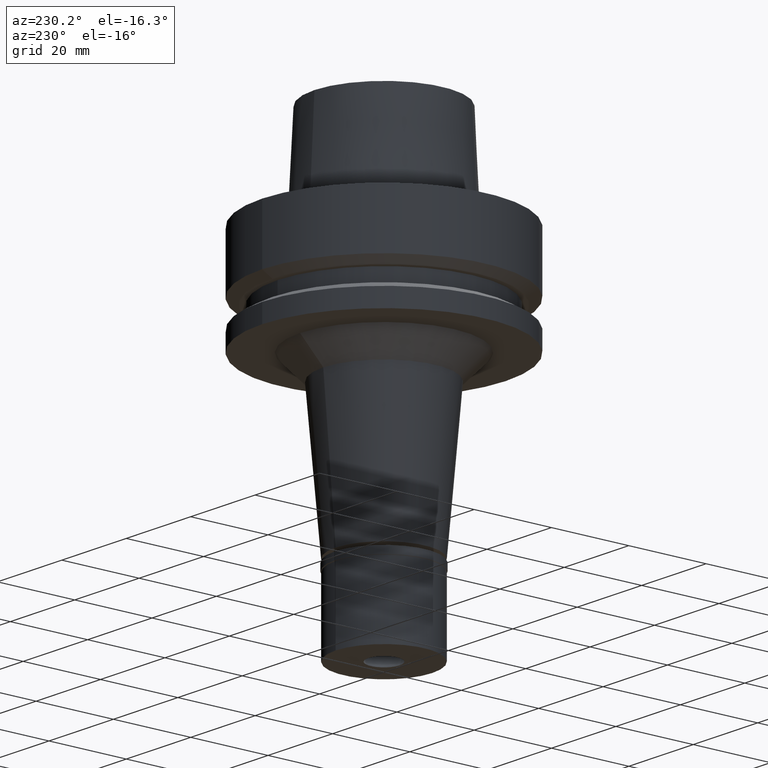
[diagram: clean part render]
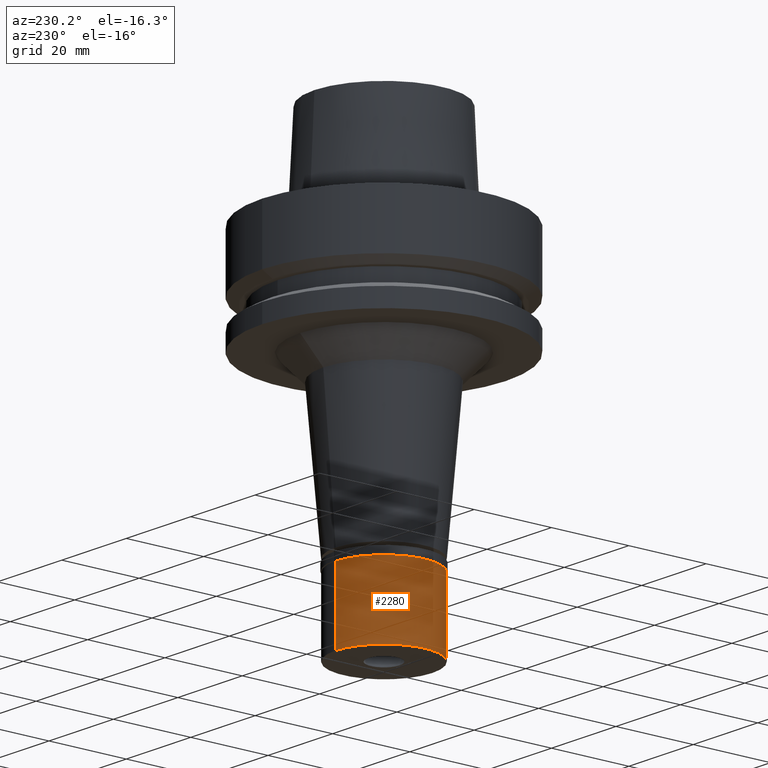
[diagram: same view with one face highlighted and labeled with its STEP entity id]
A machine part, auxiliary view. The second image highlights one B-rep face of the part: STEP entity #2280.
In plain terms, the highlighted cylindrical surface (partial cylindrical patch) has radius 12.5 mm, axis along (0, 0, -1).
Its self-contained STEP definition (entity closure, byte-faithful):
#70 = DIRECTION ( 'NONE',  ( 0.0000000000000000000, 0.0000000000000000000, -1.000000000000000000 ) ) ;
#170 = EDGE_CURVE ( 'NONE', #937, #426, #1186, .T. ) ;
#305 = CARTESIAN_POINT ( 'NONE',  ( 0.0000000000000000000, 12.50000000000000000, -20.50000000000000000 ) ) ;
#345 = DIRECTION ( 'NONE',  ( 0.0000000000000000000, -1.000000000000000000, 0.0000000000000000000 ) ) ;
#347 = ORIENTED_EDGE ( 'NONE', *, *, #2135, .T. ) ;
#426 = VERTEX_POINT ( 'NONE', #305 ) ;
#501 = AXIS2_PLACEMENT_3D ( 'NONE', #1461, #2328, #345 ) ;
#576 = ORIENTED_EDGE ( 'NONE', *, *, #1990, .T. ) ;
#686 = CARTESIAN_POINT ( 'NONE',  ( 0.0000000000000000000, -12.50000000000000000, -20.50000000000000000 ) ) ;
#690 = CARTESIAN_POINT ( 'NONE',  ( 0.0000000000000000000, 0.0000000000000000000, -2.000000000000000000 ) ) ;
#700 = LINE ( 'NONE', #1151, #1805 ) ;
#733 = CIRCLE ( 'NONE', #2680, 12.50000000000000000 ) ;
#892 = EDGE_LOOP ( 'NONE', ( #347, #1545, #576, #2306 ) ) ;
#937 = VERTEX_POINT ( 'NONE', #1465 ) ;
#1151 = CARTESIAN_POINT ( 'NONE',  ( 0.0000000000000000000, -12.50000000000000000, -2.000000000000000000 ) ) ;
#1186 = LINE ( 'NONE', #2049, #2553 ) ;
#1461 = CARTESIAN_POINT ( 'NONE',  ( 0.0000000000000000000, 0.0000000000000000000, 0.0000000000000000000 ) ) ;
#1465 = CARTESIAN_POINT ( 'NONE',  ( 0.0000000000000000000, 12.50000000000000000, -2.000000000000000000 ) ) ;
#1526 = CARTESIAN_POINT ( 'NONE',  ( 0.0000000000000000000, -12.50000000000000000, -2.000000000000000000 ) ) ;
#1545 = ORIENTED_EDGE ( 'NONE', *, *, #2687, .F. ) ;
#1594 = DIRECTION ( 'NONE',  ( 0.0000000000000000000, 0.0000000000000000000, 1.000000000000000000 ) ) ;
#1605 = DIRECTION ( 'NONE',  ( 0.0000000000000000000, 1.000000000000000000, 0.0000000000000000000 ) ) ;
#1672 = FACE_OUTER_BOUND ( 'NONE', #892, .T. ) ;
#1805 = VECTOR ( 'NONE', #2047, 1000.000000000000000 ) ;
#1824 = DIRECTION ( 'NONE',  ( 0.0000000000000000000, 0.0000000000000000000, -1.000000000000000000 ) ) ;
#1912 = VERTEX_POINT ( 'NONE', #1526 ) ;
#1990 = EDGE_CURVE ( 'NONE', #1912, #937, #2167, .T. ) ;
#2047 = DIRECTION ( 'NONE',  ( 0.0000000000000000000, 0.0000000000000000000, -1.000000000000000000 ) ) ;
#2049 = CARTESIAN_POINT ( 'NONE',  ( 0.0000000000000000000, 12.50000000000000000, -2.000000000000000000 ) ) ;
#2135 = EDGE_CURVE ( 'NONE', #426, #2621, #733, .T. ) ;
#2167 = CIRCLE ( 'NONE', #2547, 12.50000000000000000 ) ;
#2266 = DIRECTION ( 'NONE',  ( 0.0000000000000000000, -1.000000000000000000, 0.0000000000000000000 ) ) ;
#2280 = ADVANCED_FACE ( 'NONE', ( #1672 ), #2555, .T. ) ;
#2306 = ORIENTED_EDGE ( 'NONE', *, *, #170, .T. ) ;
#2328 = DIRECTION ( 'NONE',  ( 0.0000000000000000000, 0.0000000000000000000, -1.000000000000000000 ) ) ;
#2547 = AXIS2_PLACEMENT_3D ( 'NONE', #690, #1824, #2266 ) ;
#2553 = VECTOR ( 'NONE', #70, 1000.000000000000000 ) ;
#2555 = CYLINDRICAL_SURFACE ( 'NONE', #501, 12.50000000000000000 ) ;
#2621 = VERTEX_POINT ( 'NONE', #686 ) ;
#2680 = AXIS2_PLACEMENT_3D ( 'NONE', #2722, #1594, #1605 ) ;
#2687 = EDGE_CURVE ( 'NONE', #1912, #2621, #700, .T. ) ;
#2722 = CARTESIAN_POINT ( 'NONE',  ( 0.0000000000000000000, 0.0000000000000000000, -20.50000000000000000 ) ) ;